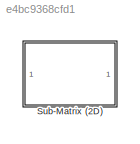
MODEL slx_e4bc9368cfd1
KIND library
CONFIG AbsTol = auto
CONFIG FixedStep = auto
CONFIG MaxStep = auto
CONFIG MinStep = auto
CONFIG RelTol = 1e-3
CONFIG SampleTimeConstraint = Unconstrained
CONFIG Solver = ode45
CONFIG SolverMode = Auto
CONFIG SolverName = ode45
CONFIG StartTime = 0.0
CONFIG StopTime = 10.0
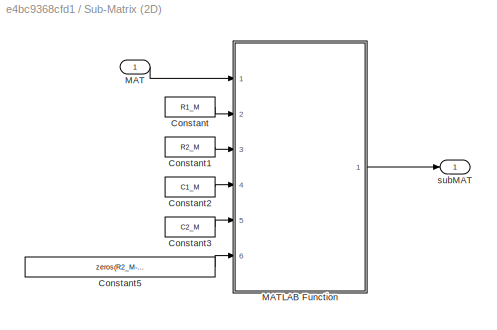
BLOCK [SubSystem] Sub-Matrix (2D)
  Ports = [1, 1]
  RequestExecContextInheritance = off
BLOCK [Constant] Sub-Matrix (2D)/Constant
  Value = R1_M
BLOCK [Constant] Sub-Matrix (2D)/Constant1
  Value = R2_M
BLOCK [Constant] Sub-Matrix (2D)/Constant2
  Value = C1_M
BLOCK [Constant] Sub-Matrix (2D)/Constant3
  Value = C2_M
BLOCK [Constant] Sub-Matrix (2D)/Constant5
  Value = zeros(R2_M-R1_M+1,C2_M-C1_M+1)
BLOCK [Inport] Sub-Matrix (2D)/MAT
  IconDisplay = Port number
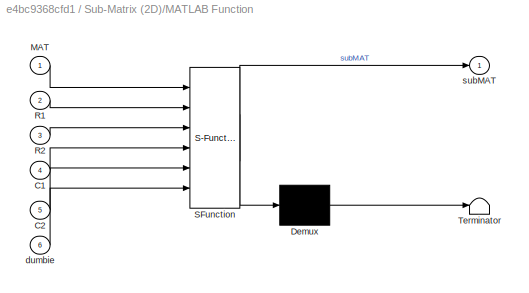
BLOCK [SubSystem] Sub-Matrix (2D)/MATLAB Function
  ErrorFcn = Stateflow.Translate.translate
  PermitHierarchicalResolution = ExplicitOnly
  Ports = [6, 1]
  RequestExecContextInheritance = off
  SFBlockType = MATLAB Function
  TreatAsAtomicUnit = on
BLOCK [Demux] Sub-Matrix (2D)/MATLAB Function/ Demux 
  Outputs = 1
  Ports = [1, 1]
BLOCK [S-Function] Sub-Matrix (2D)/MATLAB Function/ SFunction 
  EnableBusSupport = on
  FunctionName = sf_sfun
  PortCounts = [6 2]
  Ports = [6, 2]
  Tag = Stateflow S-Function lib_GenTools_SubMatrix 2
BLOCK [Terminator] Sub-Matrix (2D)/MATLAB Function/ Terminator 
BLOCK [Inport] Sub-Matrix (2D)/MATLAB Function/C1
  IconDisplay = Port number
  Port = 4
BLOCK [Inport] Sub-Matrix (2D)/MATLAB Function/C2
  IconDisplay = Port number
  Port = 5
BLOCK [Inport] Sub-Matrix (2D)/MATLAB Function/MAT
  IconDisplay = Port number
BLOCK [Inport] Sub-Matrix (2D)/MATLAB Function/R1
  IconDisplay = Port number
  Port = 2
BLOCK [Inport] Sub-Matrix (2D)/MATLAB Function/R2
  IconDisplay = Port number
  Port = 3
BLOCK [Inport] Sub-Matrix (2D)/MATLAB Function/dumbie
  IconDisplay = Port number
  Port = 6
BLOCK [Outport] Sub-Matrix (2D)/MATLAB Function/subMAT
  IconDisplay = Port number
BLOCK [Outport] Sub-Matrix (2D)/subMAT
  IconDisplay = Port number
LINE Sub-Matrix (2D)/Constant1:1 -> Sub-Matrix (2D)/MATLAB Function:3
LINE Sub-Matrix (2D)/Constant2:1 -> Sub-Matrix (2D)/MATLAB Function:4
LINE Sub-Matrix (2D)/Constant3:1 -> Sub-Matrix (2D)/MATLAB Function:5
LINE Sub-Matrix (2D)/Constant5:1 -> Sub-Matrix (2D)/MATLAB Function:6
LINE Sub-Matrix (2D)/Constant:1 -> Sub-Matrix (2D)/MATLAB Function:2
LINE Sub-Matrix (2D)/MAT:1 -> Sub-Matrix (2D)/MATLAB Function:1
LINE Sub-Matrix (2D)/MATLAB Function:1 -> Sub-Matrix (2D)/subMAT:1
CHART Sub-Matrix (2D)/MATLAB Function states=1 transitions=1
  STATE_LABEL 'eML_blk_kernel()'
  STATE_LABEL 'SCRIPT:\nfunction subMAT  = SubMatrix2D(MAT,R1,R2,C1,C2,dumbie)\n%#codegen\n\n%Description:\n%   This block returns a sub-matrix from a given matrix\n\n%Inputs:\n%   MAT - The matrix\n%   R1 - Starting Row Index\n%   R2 - Ending Row Index\n%   C1 - Starting Column Index\n%   C2 - Ending Column Index\n\n%Outputs:\n%   subMAT - The submatrix\n\n%Calculations ----------------------------------------------------------...<+162ch>'
